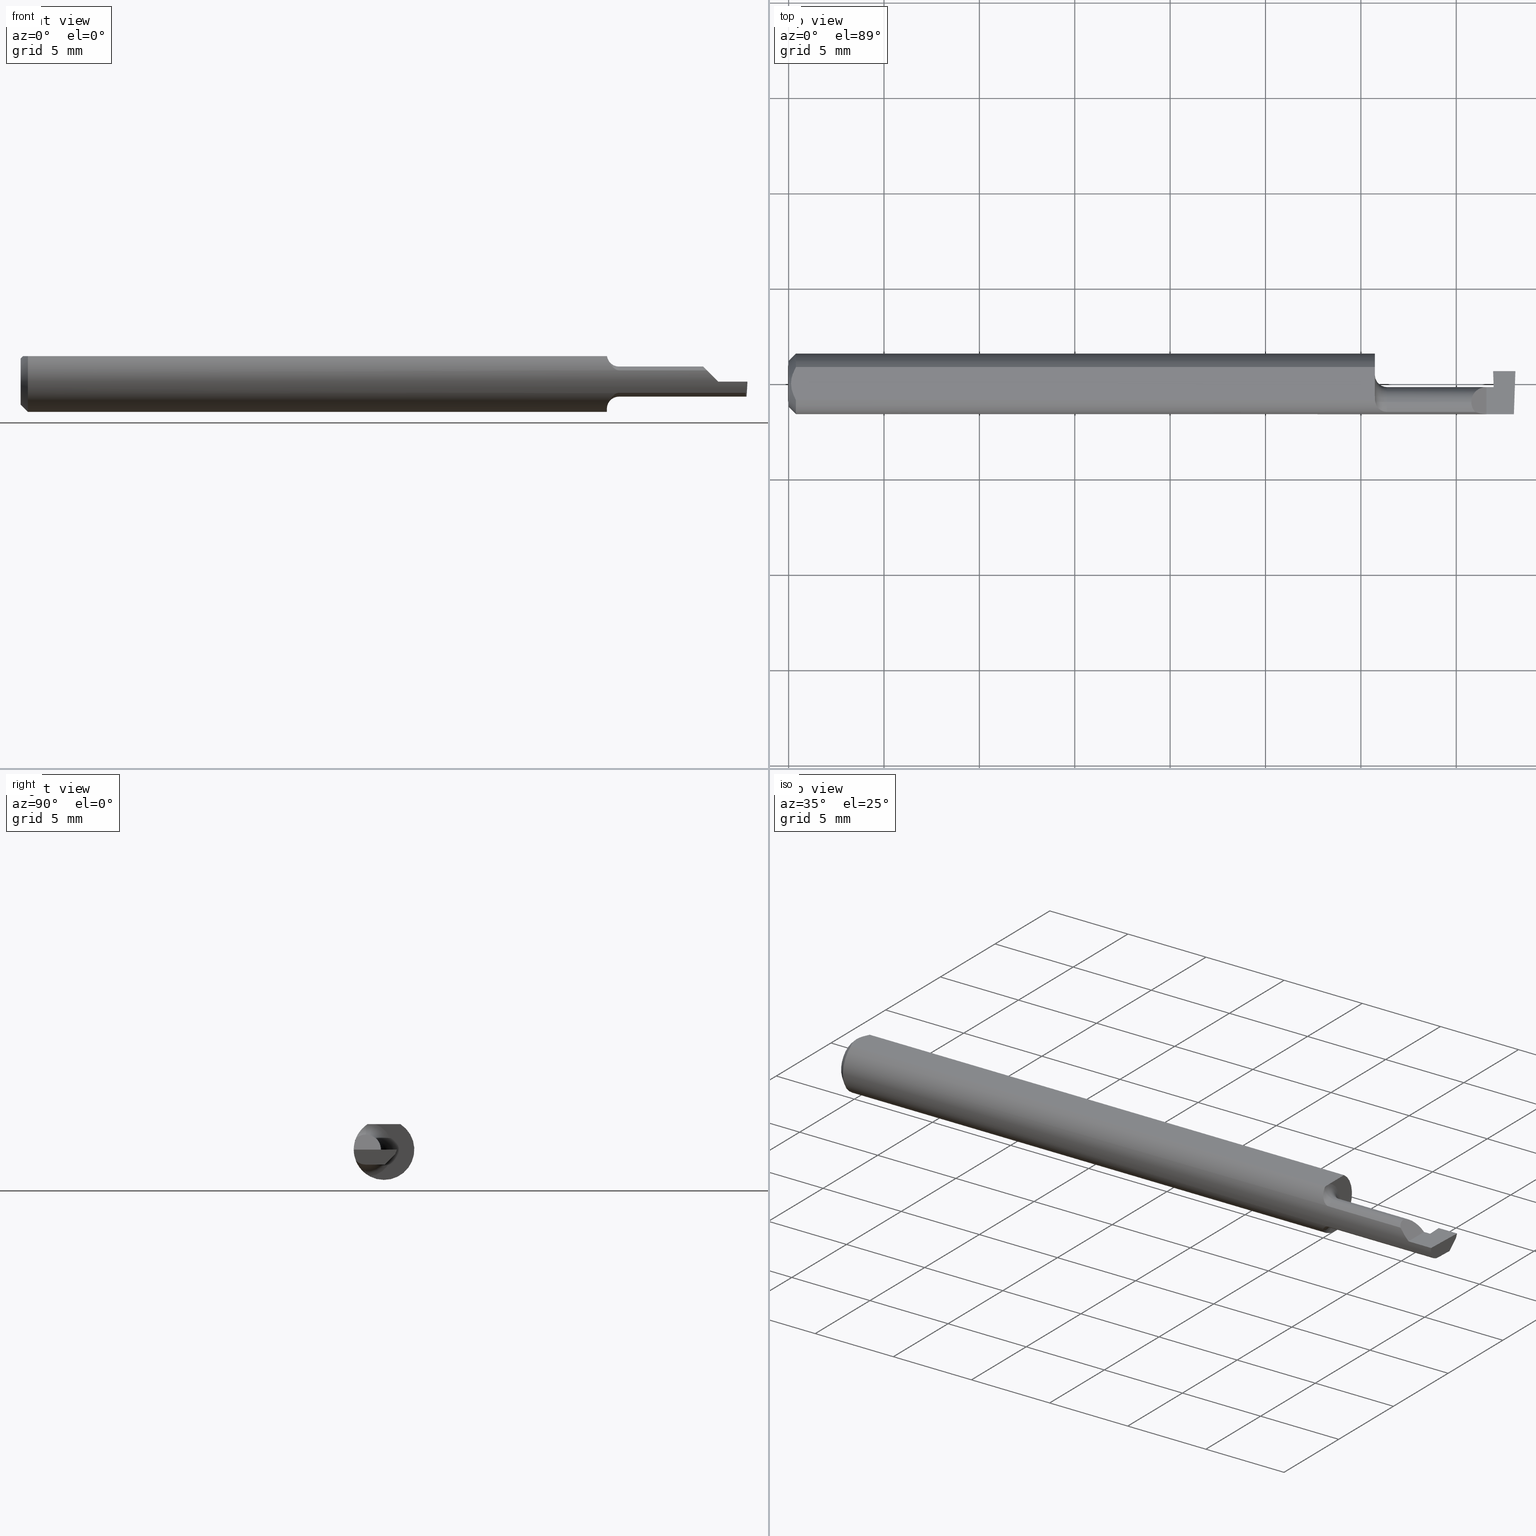
[diagram: canonical four-view strip — front | top / right | iso, engineering-drawing reading convention]
A machine part, canonical four-view strip (front | top / right | iso — engineering-drawing reading convention). The complete STEP part file that produces these views, byte-faithful:
ISO-10303-21;
HEADER;
FILE_DESCRIPTION (( 'STEP AP203' ),
    '1' );
FILE_NAME ('220560-GT045-4.STEP',
    '2024-07-15T18:47:25',
    ( '' ),
    ( '' ),
    'SwSTEP 2.0',
    'SolidWorks 2024',
    '' );
FILE_SCHEMA (( 'CONFIG_CONTROL_DESIGN' ));
ENDSEC;

DATA;
#1 = ORIENTED_EDGE ( 'NONE', *, *, #678, .T. ) ;
#2 = CARTESIAN_POINT ( 'NONE',  ( 0.000000000000000000, 6.735557395310443132E-18, 0.04749999999999999362 ) ) ;
#3 = VERTEX_POINT ( 'NONE', #244 ) ;
#4 = LENGTH_MEASURE_WITH_UNIT ( LENGTH_MEASURE( 0.02539999999999999897 ), #463 );
#5 = LINE ( 'NONE', #165, #80 ) ;
#6 = VECTOR ( 'NONE', #457, 39.37007874015748143 ) ;
#7 = ORIENTED_EDGE ( 'NONE', *, *, #114, .F. ) ;
#8 = CARTESIAN_POINT ( 'NONE',  ( 0.004999999999998634009, -0.005964525438754507587, 0.05250000000000000500 ) ) ;
#9 = CARTESIAN_POINT ( 'NONE',  ( 1.496890555848597870, -0.06249997390100388295, -5.711719386470728930E-05 ) ) ;
#10 = ORIENTED_EDGE ( 'NONE', *, *, #421, .F. ) ;
#11 = CARTESIAN_POINT ( 'NONE',  ( 1.454000000000000181, 0.02649999999999999231, -4.390358774943263236E-18 ) ) ;
#12 = EDGE_CURVE ( 'NONE', #689, #163, #477, .T. ) ;
#13 = LINE ( 'NONE', #667, #136 ) ;
#14 = EDGE_LOOP ( 'NONE', ( #438, #233, #417, #288, #121, #435 ) ) ;
#15 = DIRECTION ( 'NONE',  ( 0.000000000000000000, 0.000000000000000000, 1.000000000000000000 ) ) ;
#16 = DIRECTION ( 'NONE',  ( 0.000000000000000000, 0.000000000000000000, 1.000000000000000000 ) ) ;
#17 = ORIENTED_EDGE ( 'NONE', *, *, #362, .T. ) ;
#18 = VECTOR ( 'NONE', #317, 39.37007874015748854 ) ;
#19 = VECTOR ( 'NONE', #295, 39.37007874015748143 ) ;
#20 = CARTESIAN_POINT ( 'NONE',  ( 0.004999999999989314207, 8.235553591830799656E-16, 0.05250000000000000500 ) ) ;
#21 = CARTESIAN_POINT ( 'NONE',  ( 0.01499999999999999944, 0.000000000000000000, -0.06250000000000000000 ) ) ;
#22 = CALENDAR_DATE ( 2024, 15, 7 ) ;
#23 = CARTESIAN_POINT ( 'NONE',  ( 0.004999999999999040802, 0.005952453510029875015, 0.05249999999999999806 ) ) ;
#24 = FACE_OUTER_BOUND ( 'NONE', #567, .T. ) ;
#25 = DATE_AND_TIME ( #523, #563 ) ;
#26 = PLANE ( 'NONE',  #687 ) ;
#27 = DIRECTION ( 'NONE',  ( 0.000000000000000000, -0.9396926207859080948, 0.3420201433256694901 ) ) ;
#28 = EDGE_CURVE ( 'NONE', #543, #558, #253, .T. ) ;
#29 = PERSON_AND_ORGANIZATION_ROLE ( 'classification_officer' ) ;
#30 = AXIS2_PLACEMENT_3D ( 'NONE', #630, #142, #243 ) ;
#31 = DIRECTION ( 'NONE',  ( 0.9987827668610292919, 0.03485699000042362383, 0.03489949669461413218 ) ) ;
#32 = ORIENTED_EDGE ( 'NONE', *, *, #575, .F. ) ;
#33 = B_SPLINE_CURVE_WITH_KNOTS ( 'NONE', 3,
 ( #606, #706, #646, #153, #155, #98, #159, #382 ),
 .UNSPECIFIED., .F., .F.,
 ( 4, 2, 2, 4 ),
 ( 1.966728711740052493E-07, 0.0002849675137165564470, 0.0005697383545619388086, 0.001139280036252703424 ),
 .UNSPECIFIED. ) ;
#34 = CARTESIAN_POINT ( 'NONE',  ( 1.210730677800976984, -0.03749999999999999167, -0.05000000000000000278 ) ) ;
#35 = DATE_TIME_ROLE ( 'creation_date' ) ;
#36 = EDGE_CURVE ( 'NONE', #390, #470, #84, .T. ) ;
#37 = ADVANCED_FACE ( 'NONE', ( #238 ), #299, .T. ) ;
#38 = CARTESIAN_POINT ( 'NONE',  ( 1.210000000000000187, 0.09349999999999999978, 0.000000000000000000 ) ) ;
#39 = CARTESIAN_POINT ( 'NONE',  ( 1.500000000000000222, -0.06250000000000001388, 0.05250000000000000500 ) ) ;
#40 = ORIENTED_EDGE ( 'NONE', *, *, #199, .T. ) ;
#41 = CIRCLE ( 'NONE', #338, 0.06250000000000000000 ) ;
#42 = AXIS2_PLACEMENT_3D ( 'NONE', #585, #635, #426 ) ;
#43 = DIRECTION ( 'NONE',  ( -1.000000000000000000, -0.000000000000000000, -0.000000000000000000 ) ) ;
#44 = ORIENTED_EDGE ( 'NONE', *, *, #419, .F. ) ;
#45 =( BOUNDED_CURVE ( )  B_SPLINE_CURVE ( 3, ( #663, #608, #110, #328 ),
 .UNSPECIFIED., .F., .F. ) 
 B_SPLINE_CURVE_WITH_KNOTS ( ( 4, 4 ),
 ( 0.2627802246738042968, 0.6427944074216366266 ),
 .UNSPECIFIED. ) 
 CURVE ( )  GEOMETRIC_REPRESENTATION_ITEM ( )  RATIONAL_B_SPLINE_CURVE ( ( 1.000000000000000000, 0.9880019305490248538, 0.9880019305490248538, 1.000000000000000000 ) ) 
 REPRESENTATION_ITEM ( '' )  );
#46 = CARTESIAN_POINT ( 'NONE',  ( 1.210000000000000187, -0.03749999999999999167, 0.000000000000000000 ) ) ;
#47 = CARTESIAN_POINT ( 'NONE',  ( 1.455785434802166822, -0.006499999999999978885, -0.01815937956643404530 ) ) ;
#48 = ORIENTED_EDGE ( 'NONE', *, *, #713, .F. ) ;
#49 = FACE_OUTER_BOUND ( 'NONE', #56, .T. ) ;
#50 = FACE_OUTER_BOUND ( 'NONE', #14, .T. ) ;
#51 = ORIENTED_EDGE ( 'NONE', *, *, #280, .F. ) ;
#52 = ADVANCED_BREP_SHAPE_REPRESENTATION ( '220560-GT045-4', ( #458, #42 ), #55 ) ;
#53 = ADVANCED_FACE ( 'NONE', ( #24 ), #140, .F. ) ;
#54 = CARTESIAN_POINT ( 'NONE',  ( 1.499866476241620061, 0.02525106216603811501, -0.003431428497112825552 ) ) ;
#55 =( GEOMETRIC_REPRESENTATION_CONTEXT ( 3 ) GLOBAL_UNCERTAINTY_ASSIGNED_CONTEXT ( ( #478 ) ) GLOBAL_UNIT_ASSIGNED_CONTEXT ( ( #181, #404, #418 ) ) REPRESENTATION_CONTEXT ( 'NONE', 'WORKASPACE' ) );
#56 = EDGE_LOOP ( 'NONE', ( #501, #536, #44, #619, #273, #113 ) ) ;
#57 = CARTESIAN_POINT ( 'NONE',  ( 1.496952812378028463, -0.03749999999999999167, -0.03099999999999999631 ) ) ;
#58 = CARTESIAN_POINT ( 'NONE',  ( 1.211276458122897637, -0.04044349299612768484, 0.04779238025290422770 ) ) ;
#59 = ORIENTED_EDGE ( 'NONE', *, *, #409, .F. ) ;
#60 = EDGE_CURVE ( 'NONE', #163, #62, #149, .T. ) ;
#61 = DIRECTION ( 'NONE',  ( -1.000000000000000000, -0.000000000000000000, -0.000000000000000000 ) ) ;
#62 = VERTEX_POINT ( 'NONE', #531 ) ;
#63 = CARTESIAN_POINT ( 'NONE',  ( 1.210204566557054884, -0.03126200802673112511, 0.05250000000000000500 ) ) ;
#64 = CARTESIAN_POINT ( 'NONE',  ( 1.411704532561413483, -0.05229120942765425745, 0.02829546743858684862 ) ) ;
#65 = AXIS2_PLACEMENT_3D ( 'NONE', #596, #43, #268 ) ;
#66 = ORIENTED_EDGE ( 'NONE', *, *, #166, .F. ) ;
#67 = AXIS2_PLACEMENT_3D ( 'NONE', #659, #493, #115 ) ;
#68 = EDGE_CURVE ( 'NONE', #204, #329, #533, .T. ) ;
#69 = CARTESIAN_POINT ( 'NONE',  ( 1.440000000000000169, -0.06250000000000000000, 7.469896857675718968E-18 ) ) ;
#70 = CARTESIAN_POINT ( 'NONE',  ( 1.214533395136242033, -0.04798856493085172648, 0.04019628732337204163 ) ) ;
#71 = VERTEX_POINT ( 'NONE', #34 ) ;
#72 = CARTESIAN_POINT ( 'NONE',  ( 0.000000000000000000, 0.000000000000000000, 0.000000000000000000 ) ) ;
#73 = LINE ( 'NONE', #123, #710 ) ;
#74 = VERTEX_POINT ( 'NONE', #249 ) ;
#75 = EDGE_CURVE ( 'NONE', #470, #163, #326, .T. ) ;
#76 = CARTESIAN_POINT ( 'NONE',  ( 1.500000000000000222, -0.03749999999999999861, -0.03099999999999999631 ) ) ;
#77 = EDGE_CURVE ( 'NONE', #394, #102, #551, .T. ) ;
#78 = PLANE ( 'NONE',  #644 ) ;
#79 = CARTESIAN_POINT ( 'NONE',  ( 1.209999999999999964, -0.03749999999999999167, 0.000000000000000000 ) ) ;
#80 = VECTOR ( 'NONE', #612, 39.37007874015748143 ) ;
#81 = LOCAL_TIME ( 11, 47, 25.00000000000000000, #294 ) ;
#82 = VECTOR ( 'NONE', #323, 39.37007874015748854 ) ;
#83 = CARTESIAN_POINT ( 'NONE',  ( 1.500000000000000222, 0.001860297657337893224, -0.03100000000000000325 ) ) ;
#84 = LINE ( 'NONE', #292, #485 ) ;
#85 = PERSON_AND_ORGANIZATION_ROLE ( 'design_owner' ) ;
#86 = DIRECTION ( 'NONE',  ( 0.000000000000000000, 0.000000000000000000, -1.000000000000000000 ) ) ;
#87 = VERTEX_POINT ( 'NONE', #484 ) ;
#88 = PERSON_AND_ORGANIZATION ( #544, #416 ) ;
#89 = DIRECTION ( 'NONE',  ( -0.000000000000000000, 1.000000000000000000, 0.000000000000000000 ) ) ;
#90 = B_SPLINE_CURVE_WITH_KNOTS ( 'NONE', 3,
 ( #625, #8, #572, #564, #337, #468 ),
 .UNSPECIFIED., .F., .F.,
 ( 4, 2, 4 ),
 ( 0.001877944590463637717, 0.002327931134338583757, 0.002777917678213529581 ),
 .UNSPECIFIED. ) ;
#91 = DIRECTION ( 'NONE',  ( 0.000000000000000000, -0.3420201433256694901, -0.9396926207859080948 ) ) ;
#92 = CARTESIAN_POINT ( 'NONE',  ( 1.416763614738949295, -0.05802000000000001600, 0.02323638526105122060 ) ) ;
#93 = CARTESIAN_POINT ( 'NONE',  ( 0.01499999999999999944, 0.000000000000000000, 0.000000000000000000 ) ) ;
#94 = EDGE_CURVE ( 'NONE', #702, #3, #370, .T. ) ;
#95 = APPLICATION_PROTOCOL_DEFINITION ( 'international standard', 'config_control_design', 1994, #368 ) ;
#96 = LINE ( 'NONE', #645, #600 ) ;
#97 = EDGE_CURVE ( 'NONE', #504, #547, #203, .T. ) ;
#98 = CARTESIAN_POINT ( 'NONE',  ( 1.214146460857340459, -0.04830100695595842403, -0.04017699635729578972 ) ) ;
#99 = ORIENTED_EDGE ( 'NONE', *, *, #160, .T. ) ;
#100 = CIRCLE ( 'NONE', #67, 0.02500000000000000139 ) ;
#101 = CARTESIAN_POINT ( 'NONE',  ( 1.409000000000000252, -0.03749999999999999167, 0.03099999999999999978 ) ) ;
#102 = VERTEX_POINT ( 'NONE', #599 ) ;
#103 = CARTESIAN_POINT ( 'NONE',  ( 1.455151682536162783, -0.006500000000000021386, 1.132879419432717802E-17 ) ) ;
#104 = EDGE_CURVE ( 'NONE', #62, #462, #96, .T. ) ;
#105 = EDGE_LOOP ( 'NONE', ( #467, #176, #269 ) ) ;
#106 = ADVANCED_FACE ( 'NONE', ( #595 ), #354, .F. ) ;
#107 = CARTESIAN_POINT ( 'NONE',  ( 1.235000000000000098, -0.03749999999999999167, 0.000000000000000000 ) ) ;
#108 = CARTESIAN_POINT ( 'NONE',  ( 1.496439659513480569, -0.05802000000000000213, -0.02323638526105124835 ) ) ;
#109 = CARTESIAN_POINT ( 'NONE',  ( 0.01499999999999999944, 0.000000000000000000, -0.06250000000000000000 ) ) ;
#110 = CARTESIAN_POINT ( 'NONE',  ( 1.496682112777580453, -0.06249269490856873555, -0.008022088972760511166 ) ) ;
#111 = AXIS2_PLACEMENT_3D ( 'NONE', #359, #27, #91 ) ;
#112 = VECTOR ( 'NONE', #502, 39.37007874015748143 ) ;
#113 = ORIENTED_EDGE ( 'NONE', *, *, #207, .T. ) ;
#114 = EDGE_CURVE ( 'NONE', #173, #87, #449, .T. ) ;
#115 = DIRECTION ( 'NONE',  ( 0.000000000000000000, 0.000000000000000000, -1.000000000000000000 ) ) ;
#116 = DIRECTION ( 'NONE',  ( -1.000000000000000000, -0.000000000000000000, -0.000000000000000000 ) ) ;
#117 = ORIENTED_EDGE ( 'NONE', *, *, #75, .F. ) ;
#118 = CARTESIAN_POINT ( 'NONE',  ( 1.440000000000000169, -0.1000000000000000056, 7.469896857675718968E-18 ) ) ;
#119 = DIRECTION ( 'NONE',  ( 0.02616100201822768243, -0.0009135623211514329539, 0.9996573249755575929 ) ) ;
#120 = PRODUCT_DEFINITION ( 'UNKNOWN', '', #170, #247 ) ;
#121 = ORIENTED_EDGE ( 'NONE', *, *, #407, .T. ) ;
#122 = DIRECTION ( 'NONE',  ( -0.03489949670249706953, -0.9993908270190959842, 0.000000000000000000 ) ) ;
#123 = CARTESIAN_POINT ( 'NONE',  ( 1.495584001414323128, -0.06245432188394240552, -0.04998286624877785328 ) ) ;
#124 = CIRCLE ( 'NONE', #126, 0.03099999999999999978 ) ;
#125 = ORIENTED_EDGE ( 'NONE', *, *, #427, .F. ) ;
#126 = AXIS2_PLACEMENT_3D ( 'NONE', #406, #677, #16 ) ;
#127 = DIRECTION ( 'NONE',  ( -0.000000000000000000, 1.000000000000000000, -0.000000000000000000 ) ) ;
#128 = CARTESIAN_POINT ( 'NONE',  ( 1.210730677800976984, -0.03749999999999999861, 0.05000000000000000278 ) ) ;
#129 = ADVANCED_FACE ( 'NONE', ( #535 ), #701, .T. ) ;
#130 = ORIENTED_EDGE ( 'NONE', *, *, #152, .F. ) ;
#131 = ADVANCED_FACE ( 'NONE', ( #50 ), #261, .T. ) ;
#132 = FACE_OUTER_BOUND ( 'NONE', #561, .T. ) ;
#133 = ORIENTED_EDGE ( 'NONE', *, *, #289, .T. ) ;
#134 = FACE_OUTER_BOUND ( 'NONE', #216, .T. ) ;
#135 = EDGE_LOOP ( 'NONE', ( #704, #1, #125, #40 ) ) ;
#136 = VECTOR ( 'NONE', #175, 39.37007874015748143 ) ;
#137 = VECTOR ( 'NONE', #579, 39.37007874015749564 ) ;
#138 = PERSON_AND_ORGANIZATION ( #544, #416 ) ;
#139 = CARTESIAN_POINT ( 'NONE',  ( 1.210000000000000187, -0.06250000000000001388, 0.05250000000000000500 ) ) ;
#140 = PLANE ( 'NONE',  #111 ) ;
#141 = APPROVAL_ROLE ( '' ) ;
#142 = DIRECTION ( 'NONE',  ( 0.000000000000000000, -0.7071067811865462405, 0.7071067811865487940 ) ) ;
#143 = ORIENTED_EDGE ( 'NONE', *, *, #594, .T. ) ;
#144 = EDGE_CURVE ( 'NONE', #547, #71, #33, .T. ) ;
#145 = DIRECTION ( 'NONE',  ( 0.03487823687994284771, -0.9993915692020551855, -4.336991745945064567E-18 ) ) ;
#146 = ORIENTED_EDGE ( 'NONE', *, *, #372, .F. ) ;
#147 =( BOUNDED_CURVE ( )  B_SPLINE_CURVE ( 3, ( #541, #545, #446, #57 ),
 .UNSPECIFIED., .F., .F. ) 
 B_SPLINE_CURVE_WITH_KNOTS ( ( 4, 4 ),
 ( 0.2036900605468121850, 0.9270880441442186370 ),
 .UNSPECIFIED. ) 
 CURVE ( )  GEOMETRIC_REPRESENTATION_ITEM ( )  RATIONAL_B_SPLINE_CURVE ( ( 1.000000000000000000, 0.9568646414437727010, 0.9568646414437727010, 1.000000000000000000 ) ) 
 REPRESENTATION_ITEM ( '' )  );
#148 = DATE_AND_TIME ( #187, #552 ) ;
#149 = CIRCLE ( 'NONE', #590, 0.06250000000000000000 ) ;
#150 = CC_DESIGN_APPROVAL ( #584, ( #170 ) ) ;
#151 = CARTESIAN_POINT ( 'NONE',  ( 1.235000000000000098, -0.03749999999999999167, 0.000000000000000000 ) ) ;
#152 = EDGE_CURVE ( 'NONE', #515, #668, #312, .T. ) ;
#153 = CARTESIAN_POINT ( 'NONE',  ( 1.222133919495981269, -0.05512334192814493522, -0.02956107256455840077 ) ) ;
#154 = ORIENTED_EDGE ( 'NONE', *, *, #152, .T. ) ;
#155 = CARTESIAN_POINT ( 'NONE',  ( 1.219857446812235624, -0.05365459147834109738, -0.03221283735729432718 ) ) ;
#156 = ORIENTED_EDGE ( 'NONE', *, *, #520, .F. ) ;
#157 = VECTOR ( 'NONE', #116, 39.37007874015748143 ) ;
#158 = SECURITY_CLASSIFICATION ( '', '', #643 ) ;
#159 = CARTESIAN_POINT ( 'NONE',  ( 1.211822973508685619, -0.04339095032599648433, -0.04558178725550265931 ) ) ;
#160 = EDGE_CURVE ( 'NONE', #657, #425, #597, .T. ) ;
#161 = ORIENTED_EDGE ( 'NONE', *, *, #94, .T. ) ;
#162 = DIRECTION ( 'NONE',  ( 0.000000000000000000, 0.000000000000000000, 1.000000000000000000 ) ) ;
#163 = VERTEX_POINT ( 'NONE', #109 ) ;
#164 = PRODUCT ( '220560-GT045-4', '220560-GT045-4', '', ( #201 ) ) ;
#165 = CARTESIAN_POINT ( 'NONE',  ( 1.210000000000000187, -0.03749999999999999167, 0.03099999999999999978 ) ) ;
#166 = EDGE_CURVE ( 'NONE', #558, #390, #41, .T. ) ;
#167 = ORIENTED_EDGE ( 'NONE', *, *, #372, .T. ) ;
#168 =( BOUNDED_CURVE ( )  B_SPLINE_CURVE ( 3, ( #215, #64, #453, #395 ),
 .UNSPECIFIED., .F., .F. ) 
 B_SPLINE_CURVE_WITH_KNOTS ( ( 4, 4 ),
 ( 5.559787323582177976, 6.283185307179586232 ),
 .UNSPECIFIED. ) 
 CURVE ( )  GEOMETRIC_REPRESENTATION_ITEM ( )  RATIONAL_B_SPLINE_CURVE ( ( 1.000000000000000000, 0.9568646414437724790, 0.9568646414437724790, 1.000000000000000000 ) ) 
 REPRESENTATION_ITEM ( '' )  );
#169 = LINE ( 'NONE', #655, #391 ) ;
#170 = PRODUCT_DEFINITION_FORMATION_WITH_SPECIFIED_SOURCE ( 'ANY', '', #164, .NOT_KNOWN. ) ;
#171 = EDGE_LOOP ( 'NONE', ( #507, #276, #634, #167, #340, #624 ) ) ;
#172 = CARTESIAN_POINT ( 'NONE',  ( 1.209999999999999964, -0.02066217183507433608, 0.05250000000000000500 ) ) ;
#173 = VERTEX_POINT ( 'NONE', #101 ) ;
#174 = DIRECTION ( 'NONE',  ( 0.000000000000000000, -1.707404996040164512E-16, 1.000000000000000000 ) ) ;
#175 = DIRECTION ( 'NONE',  ( 1.000000000000000000, -0.000000000000000000, -0.000000000000000000 ) ) ;
#176 = ORIENTED_EDGE ( 'NONE', *, *, #464, .F. ) ;
#177 = DIRECTION ( 'NONE',  ( -0.7071067811865489050, 0.000000000000000000, -0.7071067811865461294 ) ) ;
#178 = CARTESIAN_POINT ( 'NONE',  ( 1.210516057201464379, -0.03634251189330765103, 0.05086811608001926693 ) ) ;
#179 = ORIENTED_EDGE ( 'NONE', *, *, #628, .F. ) ;
#180 = EDGE_CURVE ( 'NONE', #652, #186, #324, .T. ) ;
#181 =( CONVERSION_BASED_UNIT ( 'INCH', #4 ) LENGTH_UNIT ( ) NAMED_UNIT ( #266 ) );
#182 = PLANE ( 'NONE',  #415 ) ;
#183 = ORIENTED_EDGE ( 'NONE', *, *, #715, .T. ) ;
#184 = CARTESIAN_POINT ( 'NONE',  ( 1.209999999999999964, -0.01801282473009493609, 0.05250000000000000500 ) ) ;
#185 = LINE ( 'NONE', #589, #137 ) ;
#186 = VERTEX_POINT ( 'NONE', #321 ) ;
#187 = CALENDAR_DATE ( 2024, 15, 7 ) ;
#188 = CARTESIAN_POINT ( 'NONE',  ( 0.01499999999999999944, 0.000000000000000000, 0.000000000000000000 ) ) ;
#189 = ORIENTED_EDGE ( 'NONE', *, *, #319, .F. ) ;
#190 = VECTOR ( 'NONE', #692, 39.37007874015748143 ) ;
#191 = CALENDAR_DATE ( 2024, 15, 7 ) ;
#192 = LINE ( 'NONE', #586, #19 ) ;
#193 = DIRECTION ( 'NONE',  ( 0.000000000000000000, 0.000000000000000000, 1.000000000000000000 ) ) ;
#194 = APPROVAL_DATE_TIME ( #481, #705 ) ;
#195 = CARTESIAN_POINT ( 'NONE',  ( 1.235000000000000098, -0.05802000000000001600, 0.02323638526105123100 ) ) ;
#196 = DIRECTION ( 'NONE',  ( 0.000000000000000000, 0.000000000000000000, 1.000000000000000000 ) ) ;
#197 = SHAPE_DEFINITION_REPRESENTATION ( #605, #52 ) ;
#198 = FACE_OUTER_BOUND ( 'NONE', #171, .T. ) ;
#199 = EDGE_CURVE ( 'NONE', #231, #515, #546, .T. ) ;
#200 = DIRECTION ( 'NONE',  ( -1.000000000000000000, -0.000000000000000000, -0.000000000000000000 ) ) ;
#201 = MECHANICAL_CONTEXT ( 'NONE', #368, 'mechanical' ) ;
#202 = CIRCLE ( 'NONE', #242, 0.02500000000000000139 ) ;
#203 = LINE ( 'NONE', #649, #497 ) ;
#204 = VERTEX_POINT ( 'NONE', #2 ) ;
#205 = DIRECTION ( 'NONE',  ( 0.000000000000000000, 0.000000000000000000, 1.000000000000000000 ) ) ;
#206 = EDGE_LOOP ( 'NONE', ( #310, #613, #17 ) ) ;
#207 = EDGE_CURVE ( 'NONE', #87, #3, #169, .T. ) ;
#208 = CARTESIAN_POINT ( 'NONE',  ( 1.500000000000000222, 0.05427015754537661829, -0.03100000000000001019 ) ) ;
#209 = DIRECTION ( 'NONE',  ( -0.04472628571147419657, 0.3416778765727996880, 0.9387522506109683418 ) ) ;
#210 = AXIS2_PLACEMENT_3D ( 'NONE', #363, #236, #522 ) ;
#211 = AXIS2_PLACEMENT_3D ( 'NONE', #240, #465, #86 ) ;
#212 = DIRECTION ( 'NONE',  ( -1.000000000000000000, -0.000000000000000000, -0.000000000000000000 ) ) ;
#213 = ORIENTED_EDGE ( 'NONE', *, *, #77, .F. ) ;
#214 = CARTESIAN_POINT ( 'NONE',  ( 1.210730677800976984, -0.03749999999999999167, -0.05000000000000000278 ) ) ;
#215 = CARTESIAN_POINT ( 'NONE',  ( 1.416763614738949295, -0.05802000000000001600, 0.02323638526105122060 ) ) ;
#216 = EDGE_LOOP ( 'NONE', ( #647, #59, #459, #592, #454 ) ) ;
#217 = CARTESIAN_POINT ( 'NONE',  ( 1.209999999999999964, -0.02902000000000000066, -0.05535421935137375266 ) ) ;
#218 = CARTESIAN_POINT ( 'NONE',  ( 1.455943115480260230, 0.001860297657337897561, -0.03099999999999999631 ) ) ;
#219 = ORIENTED_EDGE ( 'NONE', *, *, #439, .F. ) ;
#220 = VECTOR ( 'NONE', #225, 39.37007874015748143 ) ;
#221 = DIRECTION ( 'NONE',  ( 0.000000000000000000, 0.000000000000000000, 1.000000000000000000 ) ) ;
#222 = VECTOR ( 'NONE', #89, 39.37007874015748143 ) ;
#223 = ORIENTED_EDGE ( 'NONE', *, *, #715, .F. ) ;
#224 = DIRECTION ( 'NONE',  ( 1.000000000000000000, -0.000000000000000000, -0.000000000000000000 ) ) ;
#225 = DIRECTION ( 'NONE',  ( 1.000000000000000000, 0.000000000000000000, 0.000000000000000000 ) ) ;
#226 = ORIENTED_EDGE ( 'NONE', *, *, #60, .F. ) ;
#227 = EDGE_CURVE ( 'NONE', #540, #657, #503, .T. ) ;
#228 = DIRECTION ( 'NONE',  ( -0.000000000000000000, 1.860523117437084140E-16, 1.000000000000000000 ) ) ;
#229 = ADVANCED_FACE ( 'NONE', ( #402 ), #230, .T. ) ;
#230 = CYLINDRICAL_SURFACE ( 'NONE', #562, 0.06250000000000000000 ) ;
#231 = VERTEX_POINT ( 'NONE', #218 ) ;
#232 = DIRECTION ( 'NONE',  ( 1.000000000000000000, 0.000000000000000000, 0.000000000000000000 ) ) ;
#233 = ORIENTED_EDGE ( 'NONE', *, *, #658, .T. ) ;
#234 = DIRECTION ( 'NONE',  ( -0.000000000000000000, 1.000000000000000000, 1.224646799147353207E-16 ) ) ;
#235 = CARTESIAN_POINT ( 'NONE',  ( 0.000000000000000000, 0.000000000000000000, 0.000000000000000000 ) ) ;
#236 = DIRECTION ( 'NONE',  ( -1.000000000000000000, -0.000000000000000000, -0.000000000000000000 ) ) ;
#237 = DIRECTION ( 'NONE',  ( 0.000000000000000000, 0.000000000000000000, -1.000000000000000000 ) ) ;
#238 = FACE_OUTER_BOUND ( 'NONE', #366, .T. ) ;
#239 = EDGE_CURVE ( 'NONE', #173, #102, #5, .T. ) ;
#240 = CARTESIAN_POINT ( 'NONE',  ( 0.01499999999999999944, 0.000000000000000000, 0.000000000000000000 ) ) ;
#241 = ORIENTED_EDGE ( 'NONE', *, *, #160, .F. ) ;
#242 = AXIS2_PLACEMENT_3D ( 'NONE', #452, #234, #174 ) ;
#243 = DIRECTION ( 'NONE',  ( 0.000000000000000000, -0.7071067811865487940, -0.7071067811865462405 ) ) ;
#244 = CARTESIAN_POINT ( 'NONE',  ( 1.455151682536162783, -0.006500000000000021386, 1.132879419432717802E-17 ) ) ;
#245 = PERSON_AND_ORGANIZATION ( #544, #416 ) ;
#246 = EDGE_CURVE ( 'NONE', #504, #252, #45, .T. ) ;
#247 = DESIGN_CONTEXT ( 'detailed design', #405, 'design' ) ;
#248 = ADVANCED_FACE ( 'NONE', ( #339 ), #450, .F. ) ;
#249 = CARTESIAN_POINT ( 'NONE',  ( 1.235000000000000098, -0.03749999999999998473, -0.03099999999999999978 ) ) ;
#250 = PERSON_AND_ORGANIZATION ( #544, #416 ) ;
#251 = DIRECTION ( 'NONE',  ( 0.000000000000000000, -0.000000000000000000, 1.000000000000000000 ) ) ;
#252 = VERTEX_POINT ( 'NONE', #9 ) ;
#253 = CIRCLE ( 'NONE', #379, 0.05599999999999999423 ) ;
#254 = APPROVAL_PERSON_ORGANIZATION ( #245, #388, #581 ) ;
#255 = CARTESIAN_POINT ( 'NONE',  ( 1.454476443978508282, 0.02286029765733796001, -0.01000000000000000368 ) ) ;
#256 = EDGE_CURVE ( 'NONE', #425, #173, #168, .T. ) ;
#257 = CARTESIAN_POINT ( 'NONE',  ( 1.210000000000000187, 0.000000000000000000, 0.000000000000000000 ) ) ;
#258 = EDGE_CURVE ( 'NONE', #462, #664, #343, .T. ) ;
#259 = ORIENTED_EDGE ( 'NONE', *, *, #665, .T. ) ;
#260 = DIRECTION ( 'NONE',  ( 1.000000000000000000, 0.000000000000000000, 0.000000000000000000 ) ) ;
#261 = PLANE ( 'NONE',  #697 ) ;
#262 = DIRECTION ( 'NONE',  ( 0.000000000000000000, 0.000000000000000000, 1.000000000000000000 ) ) ;
#263 = DIRECTION ( 'NONE',  ( 0.000000000000000000, 0.000000000000000000, 1.000000000000000000 ) ) ;
#264 = VERTEX_POINT ( 'NONE', #570 ) ;
#265 = AXIS2_PLACEMENT_3D ( 'NONE', #188, #232, #237 ) ;
#266 = DIMENSIONAL_EXPONENTS ( 1.000000000000000000, 0.000000000000000000, 0.000000000000000000, 0.000000000000000000, 0.000000000000000000, 0.000000000000000000, 0.000000000000000000 ) ;
#267 = TOROIDAL_SURFACE ( 'NONE', #303, 0.05599999999999999423, 0.02500000000000000139 ) ;
#268 = DIRECTION ( 'NONE',  ( 0.000000000000000000, 0.000000000000000000, 1.000000000000000000 ) ) ;
#269 = ORIENTED_EDGE ( 'NONE', *, *, #28, .T. ) ;
#270 = LINE ( 'NONE', #327, #82 ) ;
#271 = CARTESIAN_POINT ( 'NONE',  ( 1.219858330071591723, -0.05365673730107053258, 0.03221049271007426357 ) ) ;
#272 = EDGE_CURVE ( 'NONE', #515, #186, #13, .T. ) ;
#273 = ORIENTED_EDGE ( 'NONE', *, *, #114, .T. ) ;
#274 = CARTESIAN_POINT ( 'NONE',  ( 1.500157305068630098, 0.05426466433133510237, -0.03100000000000001019 ) ) ;
#275 = DIRECTION ( 'NONE',  ( -0.04932528479609083610, 0.7062460676987122321, 0.7062460676987096786 ) ) ;
#276 = ORIENTED_EDGE ( 'NONE', *, *, #439, .T. ) ;
#277 = CARTESIAN_POINT ( 'NONE',  ( 1.499425154834944873, 0.01982173306097602394, -0.01303856459636193107 ) ) ;
#278 = DIRECTION ( 'NONE',  ( 0.000000000000000000, 0.000000000000000000, 1.000000000000000000 ) ) ;
#279 = AXIS2_PLACEMENT_3D ( 'NONE', #353, #361, #424 ) ;
#280 = EDGE_CURVE ( 'NONE', #252, #540, #73, .T. ) ;
#281 = ORIENTED_EDGE ( 'NONE', *, *, #68, .T. ) ;
#282 = EDGE_CURVE ( 'NONE', #702, #74, #560, .T. ) ;
#283 = CARTESIAN_POINT ( 'NONE',  ( 1.210229202404335291, -0.03391164991562639619, 0.05250000000000000500 ) ) ;
#284 = CARTESIAN_POINT ( 'NONE',  ( 1.216038272854087943, -0.05007310510346348054, 0.03753991800363104536 ) ) ;
#285 = ORIENTED_EDGE ( 'NONE', *, *, #12, .F. ) ;
#286 = DIRECTION ( 'NONE',  ( -0.7071067811865461294, 0.000000000000000000, 0.7071067811865489050 ) ) ;
#287 = LINE ( 'NONE', #444, #220 ) ;
#288 = ORIENTED_EDGE ( 'NONE', *, *, #36, .T. ) ;
#289 = EDGE_CURVE ( 'NONE', #394, #425, #287, .T. ) ;
#290 = CARTESIAN_POINT ( 'NONE',  ( 0.009668628632509970039, 0.02325858892916567860, 0.05250000000000001193 ) ) ;
#291 = AXIS2_PLACEMENT_3D ( 'NONE', #714, #542, #205 ) ;
#292 = CARTESIAN_POINT ( 'NONE',  ( 0.000000000000000000, 0.03391164991562636150, 0.05249999999999998418 ) ) ;
#293 = APPROVAL_PERSON_ORGANIZATION ( #471, #705, #141 ) ;
#294 = COORDINATED_UNIVERSAL_TIME_OFFSET ( 8, 0, .BEHIND. ) ;
#295 = DIRECTION ( 'NONE',  ( 0.03489949670249706953, 0.9993908270190959842, -4.341950059913416674E-18 ) ) ;
#296 = ORIENTED_EDGE ( 'NONE', *, *, #658, .F. ) ;
#297 = DATE_AND_TIME ( #191, #81 ) ;
#298 = LINE ( 'NONE', #83, #621 ) ;
#299 = CYLINDRICAL_SURFACE ( 'NONE', #210, 0.03099999999999999978 ) ;
#300 = APPLICATION_PROTOCOL_DEFINITION ( 'international standard', 'config_control_design', 1994, #405 ) ;
#301 = CARTESIAN_POINT ( 'NONE',  ( 0.01499999999999999771, 0.03391164991562633374, 0.05250000000000000500 ) ) ;
#302 = ORIENTED_EDGE ( 'NONE', *, *, #280, .T. ) ;
#303 = AXIS2_PLACEMENT_3D ( 'NONE', #107, #384, #604 ) ;
#304 = APPROVAL_DATE_TIME ( #25, #388 ) ;
#305 = CARTESIAN_POINT ( 'NONE',  ( 1.455743911843603300, 0.02656089874350437557, -0.04996954135095477145 ) ) ;
#306 = DIRECTION ( 'NONE',  ( -1.000000000000000000, -0.000000000000000000, -0.000000000000000000 ) ) ;
#307 = B_SPLINE_CURVE_WITH_KNOTS ( 'NONE', 3,
 ( #670, #58, #565, #70, #284, #271, #500, #447, #660, #195 ),
 .UNSPECIFIED., .F., .F.,
 ( 4, 2, 2, 2, 4 ),
 ( 0.0001117245180919403103, 0.0003949083380089214376, 0.0006780921579259025379, 0.0009612759778428836381, 0.001244459797759864738 ),
 .UNSPECIFIED. ) ;
#308 = APPROVAL_STATUS ( 'not_yet_approved' ) ;
#309 = CARTESIAN_POINT ( 'NONE',  ( 1.421840620433566293, -0.006499999999999986691, 0.01815937956643405224 ) ) ;
#310 = ORIENTED_EDGE ( 'NONE', *, *, #144, .T. ) ;
#311 = DIRECTION ( 'NONE',  ( -1.000000000000000000, 0.000000000000000000, 1.244982809612622067E-16 ) ) ;
#312 = LINE ( 'NONE', #537, #475 ) ;
#313 = ORIENTED_EDGE ( 'NONE', *, *, #362, .F. ) ;
#314 = AXIS2_PLACEMENT_3D ( 'NONE', #151, #212, #162 ) ;
#315 = AXIS2_PLACEMENT_3D ( 'NONE', #320, #698, #311 ) ;
#316 = CARTESIAN_POINT ( 'NONE',  ( 1.209999999999999964, -0.01801282473009493609, 0.05250000000000000500 ) ) ;
#317 = DIRECTION ( 'NONE',  ( -0.03654090288697207922, -0.3417917279781195750, -0.9390650547762576794 ) ) ;
#318 = ORIENTED_EDGE ( 'NONE', *, *, #640, .T. ) ;
#319 = EDGE_CURVE ( 'NONE', #702, #555, #509, .T. ) ;
#320 = CARTESIAN_POINT ( 'NONE',  ( 1.500000000000000222, -0.1000000000000000056, 0.000000000000000000 ) ) ;
#321 = CARTESIAN_POINT ( 'NONE',  ( 1.499610879962989252, 0.02286029765733796001, -0.01000000000000000888 ) ) ;
#322 = ORIENTED_EDGE ( 'NONE', *, *, #575, .T. ) ;
#323 = DIRECTION ( 'NONE',  ( -0.03487823687206274836, -0.001217974870087546639, 0.9993908270190957621 ) ) ;
#324 = LINE ( 'NONE', #54, #18 ) ;
#325 = EDGE_LOOP ( 'NONE', ( #682, #183 ) ) ;
#326 = CIRCLE ( 'NONE', #699, 0.06250000000000000000 ) ;
#327 = CARTESIAN_POINT ( 'NONE',  ( 1.456895595234785512, -0.006439101226637702555, -0.04996956585043643706 ) ) ;
#328 = CARTESIAN_POINT ( 'NONE',  ( 1.496890555848597870, -0.06249997390100388295, -5.711719386470728930E-05 ) ) ;
#329 = VERTEX_POINT ( 'NONE', #398 ) ;
#330 = CARTESIAN_POINT ( 'NONE',  ( 1.209999999999999964, -0.03199811029573849247, -0.05379291541113154218 ) ) ;
#331 = B_SPLINE_CURVE_WITH_KNOTS ( 'NONE', 3,
 ( #283, #63, #559, #348, #172, #184 ),
 .UNSPECIFIED., .F., .F.,
 ( 4, 2, 4 ),
 ( 0.006720649285649993657, 0.006920528095085039244, 0.007120406904520083964 ),
 .UNSPECIFIED. ) ;
#332 = CARTESIAN_POINT ( 'NONE',  ( 0.000000000000000000, 0.000000000000000000, 0.000000000000000000 ) ) ;
#333 = ORIENTED_EDGE ( 'NONE', *, *, #594, .F. ) ;
#334 = PLANE ( 'NONE',  #610 ) ;
#335 = EDGE_CURVE ( 'NONE', #664, #394, #307, .T. ) ;
#336 = ORIENTED_EDGE ( 'NONE', *, *, #665, .F. ) ;
#337 = CARTESIAN_POINT ( 'NONE',  ( 0.01216049014016022493, -0.02867836381244416935, 0.05250000000000000500 ) ) ;
#338 = AXIS2_PLACEMENT_3D ( 'NONE', #257, #433, #377 ) ;
#339 = FACE_OUTER_BOUND ( 'NONE', #712, .T. ) ;
#340 = ORIENTED_EDGE ( 'NONE', *, *, #207, .F. ) ;
#341 = CC_DESIGN_PERSON_AND_ORGANIZATION_ASSIGNMENT ( #690, #483, ( #120 ) ) ;
#342 = DIRECTION ( 'NONE',  ( -0.03489949670249706259, -0.9993908270190959842, 1.859932635832894283E-16 ) ) ;
#343 = B_SPLINE_CURVE_WITH_KNOTS ( 'NONE', 3,
 ( #615, #623, #178, #128 ),
 .UNSPECIFIED., .F., .F.,
 ( 4, 4 ),
 ( 3.663786321824667157E-07, 0.0001117245180919403103 ),
 .UNSPECIFIED. ) ;
#344 = CARTESIAN_POINT ( 'NONE',  ( 1.235000000000000098, -0.03749999999999999167, 0.000000000000000000 ) ) ;
#345 = ADVANCED_FACE ( 'NONE', ( #132 ), #182, .F. ) ;
#346 = ORIENTED_EDGE ( 'NONE', *, *, #289, .F. ) ;
#347 = ADVANCED_FACE ( 'NONE', ( #582 ), #358, .F. ) ;
#348 = CARTESIAN_POINT ( 'NONE',  ( 1.210049859856603183, -0.02331211554562635097, 0.05250000000000001193 ) ) ;
#349 = CARTESIAN_POINT ( 'NONE',  ( 1.210000000000000187, 0.03391164991562634068, 0.05250000000000000500 ) ) ;
#350 = ORIENTED_EDGE ( 'NONE', *, *, #421, .T. ) ;
#351 = PLANE ( 'NONE',  #674 ) ;
#352 = ADVANCED_FACE ( 'NONE', ( #420 ), #529, .T. ) ;
#353 = CARTESIAN_POINT ( 'NONE',  ( 0.000000000000000000, 0.000000000000000000, 0.000000000000000000 ) ) ;
#354 = TOROIDAL_SURFACE ( 'NONE', #314, 0.05599999999999999423, 0.02500000000000000139 ) ;
#355 = AXIS2_PLACEMENT_3D ( 'NONE', #72, #512, #15 ) ;
#356 = ORIENTED_EDGE ( 'NONE', *, *, #97, .F. ) ;
#357 = APPROVAL_STATUS ( 'not_yet_approved' ) ;
#358 = PLANE ( 'NONE',  #30 ) ;
#359 = CARTESIAN_POINT ( 'NONE',  ( 1.400000000000000133, 0.02649999999999999231, -4.390358774943263236E-18 ) ) ;
#360 = PERSON_AND_ORGANIZATION ( #544, #416 ) ;
#361 = DIRECTION ( 'NONE',  ( -1.000000000000000000, -0.000000000000000000, -0.000000000000000000 ) ) ;
#362 = EDGE_CURVE ( 'NONE', #74, #547, #124, .T. ) ;
#363 = CARTESIAN_POINT ( 'NONE',  ( 1.210000000000000187, -0.03749999999999999167, 0.000000000000000000 ) ) ;
#364 = ADVANCED_FACE ( 'NONE', ( #688 ), #26, .F. ) ;
#365 = DIRECTION ( 'NONE',  ( -1.000000000000000000, -0.000000000000000000, -0.000000000000000000 ) ) ;
#366 = EDGE_LOOP ( 'NONE', ( #679, #48, #156, #616, #313 ) ) ;
#367 = VECTOR ( 'NONE', #224, 39.37007874015748143 ) ;
#368 = APPLICATION_CONTEXT ( 'configuration controlled 3d designs of mechanical parts and assemblies' ) ;
#369 = COORDINATED_UNIVERSAL_TIME_OFFSET ( 8, 0, .BEHIND. ) ;
#370 =( BOUNDED_CURVE ( )  B_SPLINE_CURVE ( 3, ( #491, #549, #47, #103 ),
 .UNSPECIFIED., .F., .T. ) 
 B_SPLINE_CURVE_WITH_KNOTS ( ( 4, 4 ),
 ( 3.140373936913447572, 4.711170263708345018 ),
 .UNSPECIFIED. ) 
 CURVE ( )  GEOMETRIC_REPRESENTATION_ITEM ( )  RATIONAL_B_SPLINE_CURVE ( ( 1.000000000000000000, 0.8047378541243648264, 0.8047378541243648264, 1.000000000000000000 ) ) 
 REPRESENTATION_ITEM ( '' )  );
#371 = DIRECTION ( 'NONE',  ( -1.000000000000000000, -0.000000000000000000, -0.000000000000000000 ) ) ;
#372 = EDGE_CURVE ( 'NONE', #668, #3, #626, .T. ) ;
#373 = B_SPLINE_CURVE_WITH_KNOTS ( 'NONE', 3,
 ( #691, #472, #290, #681, #23, #20 ),
 .UNSPECIFIED., .F., .F.,
 ( 4, 2, 4 ),
 ( 0.0009797930073890425730, 0.001428868798926340253, 0.001877944590463637717 ),
 .UNSPECIFIED. ) ;
#374 = DIRECTION ( 'NONE',  ( 1.000000000000000000, 0.000000000000000000, -0.000000000000000000 ) ) ;
#375 = ORIENTED_EDGE ( 'NONE', *, *, #180, .F. ) ;
#376 = PLANE ( 'NONE',  #315 ) ;
#377 = DIRECTION ( 'NONE',  ( 0.000000000000000000, 0.000000000000000000, -1.000000000000000000 ) ) ;
#378 = ORIENTED_EDGE ( 'NONE', *, *, #427, .T. ) ;
#379 = AXIS2_PLACEMENT_3D ( 'NONE', #79, #200, #193 ) ;
#380 = VECTOR ( 'NONE', #145, 39.37007874015749564 ) ;
#381 = DIRECTION ( 'NONE',  ( -1.000000000000000000, -0.000000000000000000, -0.000000000000000000 ) ) ;
#382 = CARTESIAN_POINT ( 'NONE',  ( 1.210730677800976984, -0.03749999999999999167, -0.05000000000000000278 ) ) ;
#383 = EDGE_LOOP ( 'NONE', ( #490, #241, #448, #7 ) ) ;
#384 = DIRECTION ( 'NONE',  ( -1.000000000000000000, -0.000000000000000000, -0.000000000000000000 ) ) ;
#385 = FACE_OUTER_BOUND ( 'NONE', #105, .T. ) ;
#386 = ADVANCED_FACE ( 'NONE', ( #134 ), #392, .T. ) ;
#387 = ORIENTED_EDGE ( 'NONE', *, *, #239, .T. ) ;
#388 = APPROVAL ( #357, 'UNSPECIFIED' ) ;
#389 = DIRECTION ( 'NONE',  ( -1.000000000000000000, -0.000000000000000000, -0.000000000000000000 ) ) ;
#390 = VERTEX_POINT ( 'NONE', #349 ) ;
#391 = VECTOR ( 'NONE', #618, 39.37007874015748143 ) ;
#392 = CONICAL_SURFACE ( 'NONE', #211, 0.06250000000000000000, 0.7853981633974483900 ) ;
#393 = CARTESIAN_POINT ( 'NONE',  ( 2.324973294346407873E-32, -0.06250000000000000000, 1.867474214418933224E-16 ) ) ;
#394 = VERTEX_POINT ( 'NONE', #479 ) ;
#395 = CARTESIAN_POINT ( 'NONE',  ( 1.409000000000000252, -0.03749999999999999167, 0.03099999999999999978 ) ) ;
#396 = ORIENTED_EDGE ( 'NONE', *, *, #199, .F. ) ;
#397 = CARTESIAN_POINT ( 'NONE',  ( 1.400000000000000133, 0.02649999999999999231, -4.390358774943263236E-18 ) ) ;
#398 = CARTESIAN_POINT ( 'NONE',  ( 0.004999999999989314207, 8.235553591830799656E-16, 0.05250000000000000500 ) ) ;
#399 = ADVANCED_FACE ( 'NONE', ( #573 ), #78, .F. ) ;
#400 = EDGE_LOOP ( 'NONE', ( #583, #336, #685, #375, #219, #51, #525 ) ) ;
#401 = DIRECTION ( 'NONE',  ( 0.000000000000000000, -1.000000000000000000, 1.860523117437084140E-16 ) ) ;
#402 = FACE_OUTER_BOUND ( 'NONE', #574, .T. ) ;
#403 = ORIENTED_EDGE ( 'NONE', *, *, #144, .F. ) ;
#404 =( NAMED_UNIT ( * ) PLANE_ANGLE_UNIT ( ) SI_UNIT ( $, .RADIAN. ) );
#405 = APPLICATION_CONTEXT ( 'configuration controlled 3d designs of mechanical parts and assemblies' ) ;
#406 = CARTESIAN_POINT ( 'NONE',  ( 1.235000000000000098, -0.03749999999999999167, 0.000000000000000000 ) ) ;
#407 = EDGE_CURVE ( 'NONE', #470, #329, #373, .T. ) ;
#408 = EDGE_LOOP ( 'NONE', ( #378, #259, #609, #510, #350 ) ) ;
#409 = EDGE_CURVE ( 'NONE', #689, #204, #530, .T. ) ;
#410 = LINE ( 'NONE', #277, #451 ) ;
#411 = DIRECTION ( 'NONE',  ( 0.000000000000000000, 0.000000000000000000, 1.000000000000000000 ) ) ;
#412 = EDGE_LOOP ( 'NONE', ( #32, #587, #637 ) ) ;
#413 = COORDINATED_UNIVERSAL_TIME_OFFSET ( 8, 0, .BEHIND. ) ;
#414 = LINE ( 'NONE', #139, #222 ) ;
#415 = AXIS2_PLACEMENT_3D ( 'NONE', #305, #31, #633 ) ;
#416 = ORGANIZATION ( 'UNSPECIFIED', 'UNSPECIFIED', '' ) ;
#417 = ORIENTED_EDGE ( 'NONE', *, *, #464, .T. ) ;
#418 =( NAMED_UNIT ( * ) SI_UNIT ( $, .STERADIAN. ) SOLID_ANGLE_UNIT ( ) );
#419 = EDGE_CURVE ( 'NONE', #102, #74, #539, .T. ) ;
#420 = FACE_OUTER_BOUND ( 'NONE', #487, .T. ) ;
#421 = EDGE_CURVE ( 'NONE', #555, #231, #185, .T. ) ;
#422 = CARTESIAN_POINT ( 'NONE',  ( 0.01499999999999999944, 7.654042494670957545E-18, 0.06250000000000000000 ) ) ;
#423 = APPROVAL_ROLE ( '' ) ;
#424 = DIRECTION ( 'NONE',  ( 0.000000000000000000, 0.000000000000000000, 1.000000000000000000 ) ) ;
#425 = VERTEX_POINT ( 'NONE', #92 ) ;
#426 = DIRECTION ( 'NONE',  ( 1.000000000000000000, 0.000000000000000000, 0.000000000000000000 ) ) ;
#427 = EDGE_CURVE ( 'NONE', #231, #264, #298, .T. ) ;
#428 = CARTESIAN_POINT ( 'NONE',  ( 1.440000000000000169, -0.006500000000000019651, 7.469896857675718968E-18 ) ) ;
#429 = VECTOR ( 'NONE', #275, 39.37007874015748854 ) ;
#430 = AXIS2_PLACEMENT_3D ( 'NONE', #38, #260, #436 ) ;
#431 = DATE_TIME_ROLE ( 'classification_date' ) ;
#432 = DIRECTION ( 'NONE',  ( 1.000000000000000000, 0.000000000000000000, 0.000000000000000000 ) ) ;
#433 = DIRECTION ( 'NONE',  ( 1.000000000000000000, 0.000000000000000000, 0.000000000000000000 ) ) ;
#434 = B_SPLINE_CURVE_WITH_KNOTS ( 'NONE', 3,
 ( #214, #443, #330, #556 ),
 .UNSPECIFIED., .F., .F.,
 ( 4, 4 ),
 ( 0.001139280036252703424, 0.001394915048278311297 ),
 .UNSPECIFIED. ) ;
#435 = ORIENTED_EDGE ( 'NONE', *, *, #648, .T. ) ;
#436 = DIRECTION ( 'NONE',  ( 0.000000000000000000, 0.000000000000000000, -1.000000000000000000 ) ) ;
#437 = CARTESIAN_POINT ( 'NONE',  ( 1.424175658816638546, -0.06098844384283146070, 0.01582434118336195975 ) ) ;
#438 = ORIENTED_EDGE ( 'NONE', *, *, #104, .T. ) ;
#439 = EDGE_CURVE ( 'NONE', #540, #652, #192, .T. ) ;
#440 = CARTESIAN_POINT ( 'NONE',  ( 1.456233566933940349, -0.006462219764328832813, -0.03099999999999999631 ) ) ;
#441 = CC_DESIGN_DATE_AND_TIME_ASSIGNMENT ( #297, #35, ( #120 ) ) ;
#442 = EDGE_LOOP ( 'NONE', ( #603, #387, #213, #133 ) ) ;
#443 = CARTESIAN_POINT ( 'NONE',  ( 1.210240408106322274, -0.03485588595911404131, -0.05198308553066447596 ) ) ;
#444 = CARTESIAN_POINT ( 'NONE',  ( 1.344500000000000028, -0.05802000000000000213, 0.02323638526105124835 ) ) ;
#445 = ORIENTED_EDGE ( 'NONE', *, *, #180, .T. ) ;
#446 = CARTESIAN_POINT ( 'NONE',  ( 1.496685917723086456, -0.04514286293877211448, -0.03100000000000001019 ) ) ;
#447 = CARTESIAN_POINT ( 'NONE',  ( 1.227745188404311572, -0.05730285598938314462, 0.02507717503036201515 ) ) ;
#448 = ORIENTED_EDGE ( 'NONE', *, *, #620, .T. ) ;
#449 =( BOUNDED_CURVE ( )  B_SPLINE_CURVE ( 3, ( #709, #602, #309, #428 ),
 .UNSPECIFIED., .F., .F. ) 
 B_SPLINE_CURVE_WITH_KNOTS ( ( 4, 4 ),
 ( 0.000000000000000000, 1.570796326794896558 ),
 .UNSPECIFIED. ) 
 CURVE ( )  GEOMETRIC_REPRESENTATION_ITEM ( )  RATIONAL_B_SPLINE_CURVE ( ( 1.000000000000000000, 0.8047378541243649375, 0.8047378541243649375, 1.000000000000000000 ) ) 
 REPRESENTATION_ITEM ( '' )  );
#450 = TOROIDAL_SURFACE ( 'NONE', #650, 0.05599999999999999423, 0.02500000000000000139 ) ;
#451 = VECTOR ( 'NONE', #675, 39.37007874015748143 ) ;
#452 = CARTESIAN_POINT ( 'NONE',  ( 1.235000000000000098, -0.03749999999999998473, -0.05599999999999999423 ) ) ;
#453 = CARTESIAN_POINT ( 'NONE',  ( 1.409000000000000474, -0.04514286293877214917, 0.03099999999999999631 ) ) ;
#454 = ORIENTED_EDGE ( 'NONE', *, *, #648, .F. ) ;
#455 = CARTESIAN_POINT ( 'NONE',  ( 1.498691949899088272, 0.02654567811605756597, -0.04998286624877786716 ) ) ;
#456 = CC_DESIGN_PERSON_AND_ORGANIZATION_ASSIGNMENT ( #88, #683, ( #170 ) ) ;
#457 = DIRECTION ( 'NONE',  ( 4.253255647401028242E-05, 0.9999999990954908657, -1.860522997331905682E-16 ) ) ;
#458 = MANIFOLD_SOLID_BREP ( '6E73FEF6-14E9-46c6-9B28-227F7553215F-GAAFaceID8', #686 ) ;
#459 = ORIENTED_EDGE ( 'NONE', *, *, #12, .T. ) ;
#460 = CARTESIAN_POINT ( 'NONE',  ( 1.440000000000000169, -0.1000000000000000056, 7.469896857675718968E-18 ) ) ;
#461 = DIRECTION ( 'NONE',  ( -1.000000000000000000, -0.000000000000000000, -0.000000000000000000 ) ) ;
#462 = VERTEX_POINT ( 'NONE', #521 ) ;
#463 =( LENGTH_UNIT ( ) NAMED_UNIT ( * ) SI_UNIT ( $, .METRE. ) );
#464 = EDGE_CURVE ( 'NONE', #543, #390, #414, .T. ) ;
#465 = DIRECTION ( 'NONE',  ( 1.000000000000000000, 0.000000000000000000, 0.000000000000000000 ) ) ;
#466 = CC_DESIGN_APPROVAL ( #705, ( #120 ) ) ;
#467 = ORIENTED_EDGE ( 'NONE', *, *, #166, .T. ) ;
#468 = CARTESIAN_POINT ( 'NONE',  ( 0.01499999999999999944, -0.03391164991562636150, 0.05249999999999998418 ) ) ;
#469 = DIRECTION ( 'NONE',  ( 0.000000000000000000, 0.000000000000000000, -1.000000000000000000 ) ) ;
#470 = VERTEX_POINT ( 'NONE', #301 ) ;
#471 = PERSON_AND_ORGANIZATION ( #544, #416 ) ;
#472 = CARTESIAN_POINT ( 'NONE',  ( 0.01218419045468773464, 0.02872204407162096823, 0.05250000000000001193 ) ) ;
#473 = ORIENTED_EDGE ( 'NONE', *, *, #534, .F. ) ;
#474 = CARTESIAN_POINT ( 'NONE',  ( 1.235000000000000098, -0.03749999999999999167, 0.000000000000000000 ) ) ;
#475 = VECTOR ( 'NONE', #209, 39.37007874015748854 ) ;
#476 = VECTOR ( 'NONE', #342, 39.37007874015748143 ) ;
#477 = LINE ( 'NONE', #21, #190 ) ;
#478 = UNCERTAINTY_MEASURE_WITH_UNIT (LENGTH_MEASURE( 1.000000000000000082E-05 ), #181, 'distance_accuracy_value', 'NONE');
#479 = CARTESIAN_POINT ( 'NONE',  ( 1.235000000000000098, -0.05802000000000001600, 0.02323638526105123100 ) ) ;
#480 = DIRECTION ( 'NONE',  ( 0.7071067811865474617, 8.659560562354934091E-17, 0.7071067811865475727 ) ) ;
#481 = DATE_AND_TIME ( #632, #591 ) ;
#482 = CARTESIAN_POINT ( 'NONE',  ( 0.01499999999999999944, 0.000000000000000000, 0.000000000000000000 ) ) ;
#483 = PERSON_AND_ORGANIZATION_ROLE ( 'creator' ) ;
#484 = CARTESIAN_POINT ( 'NONE',  ( 1.440000000000000169, -0.006500000000000019651, 7.469896857675718968E-18 ) ) ;
#485 = VECTOR ( 'NONE', #641, 39.37007874015748143 ) ;
#486 = CIRCLE ( 'NONE', #355, 0.04749999999999999362 ) ;
#487 = EDGE_LOOP ( 'NONE', ( #223, #281, #661, #496, #285 ) ) ;
#488 = FACE_OUTER_BOUND ( 'NONE', #408, .T. ) ;
#489 = CARTESIAN_POINT ( 'NONE',  ( 1.440000000000000169, -0.06250000000000000000, 7.469896857675718968E-18 ) ) ;
#490 = ORIENTED_EDGE ( 'NONE', *, *, #256, .F. ) ;
#491 = CARTESIAN_POINT ( 'NONE',  ( 1.456232246817798393, -0.03749999999999999861, -0.03099999999999999978 ) ) ;
#492 = ORIENTED_EDGE ( 'NONE', *, *, #28, .F. ) ;
#493 = DIRECTION ( 'NONE',  ( 0.000000000000000000, -1.000000000000000000, 0.000000000000000000 ) ) ;
#494 = ADVANCED_FACE ( 'NONE', ( #385 ), #694, .T. ) ;
#495 = DIRECTION ( 'NONE',  ( -1.000000000000000000, -0.000000000000000000, -0.000000000000000000 ) ) ;
#496 = ORIENTED_EDGE ( 'NONE', *, *, #75, .T. ) ;
#497 = VECTOR ( 'NONE', #495, 39.37007874015748143 ) ;
#498 = AXIS2_PLACEMENT_3D ( 'NONE', #208, #228, #401 ) ;
#499 = PLANE ( 'NONE',  #498 ) ;
#500 = CARTESIAN_POINT ( 'NONE',  ( 1.222125360129863836, -0.05512021181523650559, 0.02956762184361221707 ) ) ;
#501 = ORIENTED_EDGE ( 'NONE', *, *, #94, .F. ) ;
#502 = DIRECTION ( 'NONE',  ( -1.000000000000000000, -0.000000000000000000, -0.000000000000000000 ) ) ;
#503 = LINE ( 'NONE', #393, #157 ) ;
#504 = VERTEX_POINT ( 'NONE', #108 ) ;
#505 = CC_DESIGN_APPROVAL ( #388, ( #158 ) ) ;
#506 = LINE ( 'NONE', #76, #112 ) ;
#507 = ORIENTED_EDGE ( 'NONE', *, *, #227, .F. ) ;
#508 = FACE_OUTER_BOUND ( 'NONE', #383, .T. ) ;
#509 = LINE ( 'NONE', #554, #6 ) ;
#510 = ORIENTED_EDGE ( 'NONE', *, *, #319, .T. ) ;
#511 = ADVANCED_FACE ( 'NONE', ( #198 ), #376, .F. ) ;
#512 = DIRECTION ( 'NONE',  ( -1.000000000000000000, -0.000000000000000000, -0.000000000000000000 ) ) ;
#513 = CC_DESIGN_DATE_AND_TIME_ASSIGNMENT ( #148, #431, ( #158 ) ) ;
#514 = CARTESIAN_POINT ( 'NONE',  ( 1.454343903677173477, 0.02475802753393915867, -0.008102270123398815430 ) ) ;
#515 = VERTEX_POINT ( 'NONE', #255 ) ;
#516 = DIRECTION ( 'NONE',  ( -0.9990483607430197255, 0.03488753751661151370, 0.02617694830785934762 ) ) ;
#517 = DIRECTION ( 'NONE',  ( 0.9993915692023304098, -4.250667839518904636E-05, 0.03487821097026152367 ) ) ;
#518 = APPROVAL_PERSON_ORGANIZATION ( #360, #584, #423 ) ;
#519 = EDGE_LOOP ( 'NONE', ( #161, #473, #189 ) ) ;
#520 = EDGE_CURVE ( 'NONE', #504, #631, #147, .T. ) ;
#521 = CARTESIAN_POINT ( 'NONE',  ( 1.210229202404335291, -0.03391164991562639619, 0.05250000000000000500 ) ) ;
#522 = DIRECTION ( 'NONE',  ( 0.000000000000000000, 0.000000000000000000, 1.000000000000000000 ) ) ;
#523 = CALENDAR_DATE ( 2024, 15, 7 ) ;
#524 = DIRECTION ( 'NONE',  ( 1.000000000000000000, 0.000000000000000000, 0.000000000000000000 ) ) ;
#525 = ORIENTED_EDGE ( 'NONE', *, *, #246, .F. ) ;
#526 = CC_DESIGN_PERSON_AND_ORGANIZATION_ASSIGNMENT ( #138, #29, ( #158 ) ) ;
#527 = PERSON_AND_ORGANIZATION_ROLE ( 'creator' ) ;
#528 = CARTESIAN_POINT ( 'NONE',  ( 1.458465371114397113, -0.1014495365676831157, 5.170989896621579439E-18 ) ) ;
#529 = CONICAL_SURFACE ( 'NONE', #265, 0.06250000000000000000, 0.7853981633974483900 ) ;
#530 = CIRCLE ( 'NONE', #279, 0.04749999999999999362 ) ;
#531 = CARTESIAN_POINT ( 'NONE',  ( 0.01499999999999999944, -0.03391164991562636150, 0.05249999999999998418 ) ) ;
#532 = PERSON_AND_ORGANIZATION ( #544, #416 ) ;
#533 = LINE ( 'NONE', #422, #673 ) ;
#534 = EDGE_CURVE ( 'NONE', #555, #3, #270, .T. ) ;
#535 = FACE_OUTER_BOUND ( 'NONE', #442, .T. ) ;
#536 = ORIENTED_EDGE ( 'NONE', *, *, #282, .T. ) ;
#537 = CARTESIAN_POINT ( 'NONE',  ( 1.453891976205788694, 0.02732522704575977499, 0.002267292674148240015 ) ) ;
#538 = VECTOR ( 'NONE', #461, 39.37007874015748143 ) ;
#539 = CIRCLE ( 'NONE', #578, 0.03099999999999999978 ) ;
#540 = VERTEX_POINT ( 'NONE', #553 ) ;
#541 = CARTESIAN_POINT ( 'NONE',  ( 1.496439659513480569, -0.05802000000000000213, -0.02323638526105124835 ) ) ;
#542 = DIRECTION ( 'NONE',  ( -1.000000000000000000, -0.000000000000000000, -0.000000000000000000 ) ) ;
#543 = VERTEX_POINT ( 'NONE', #316 ) ;
#544 = PERSON ( 'UNSPECIFIED', 'UNSPECIFIED', 'UNSPECIFIED', ('UNSPECIFIED'), ('UNSPECIFIED'), ('UNSPECIFIED') ) ;
#545 = CARTESIAN_POINT ( 'NONE',  ( 1.496507155808975753, -0.05229120942765420194, -0.02829546743858687638 ) ) ;
#546 = LINE ( 'NONE', #514, #429 ) ;
#547 = VERTEX_POINT ( 'NONE', #611 ) ;
#548 = CYLINDRICAL_SURFACE ( 'NONE', #651, 0.03099999999999999978 ) ;
#549 = CARTESIAN_POINT ( 'NONE',  ( 1.456233019182636257, -0.01934062043356593596, -0.03100000000000000325 ) ) ;
#550 = ORIENTED_EDGE ( 'NONE', *, *, #258, .T. ) ;
#551 = CIRCLE ( 'NONE', #291, 0.03099999999999999978 ) ;
#552 = LOCAL_TIME ( 11, 47, 25.00000000000000000, #369 ) ;
#553 = CARTESIAN_POINT ( 'NONE',  ( 1.496892051515234412, -0.06249999999999996531, -4.074989739627355278E-18 ) ) ;
#554 = CARTESIAN_POINT ( 'NONE',  ( 1.456236150116379857, 0.05427201893379499792, -0.03100000000000001019 ) ) ;
#555 = VERTEX_POINT ( 'NONE', #440 ) ;
#556 = CARTESIAN_POINT ( 'NONE',  ( 1.209999999999999964, -0.02902000000000000066, -0.05535421935137375266 ) ) ;
#557 = CARTESIAN_POINT ( 'NONE',  ( 1.210000000000000187, -0.03749999999999999167, -0.03099999999999999978 ) ) ;
#558 = VERTEX_POINT ( 'NONE', #217 ) ;
#559 = CARTESIAN_POINT ( 'NONE',  ( 1.210152529077525907, -0.02861203825950621102, 0.05250000000000001193 ) ) ;
#560 = LINE ( 'NONE', #557, #538 ) ;
#561 = EDGE_LOOP ( 'NONE', ( #130, #396, #10, #654, #146 ) ) ;
#562 = AXIS2_PLACEMENT_3D ( 'NONE', #332, #389, #278 ) ;
#563 = LOCAL_TIME ( 11, 47, 25.00000000000000000, #588 ) ;
#564 = CARTESIAN_POINT ( 'NONE',  ( 0.009676924495017957123, -0.02328413057436891712, 0.05250000000000001193 ) ) ;
#565 = CARTESIAN_POINT ( 'NONE',  ( 1.212141915052869834, -0.04317098555031172180, 0.04533111387689952448 ) ) ;
#566 = ADVANCED_FACE ( 'NONE', ( #49 ), #548, .T. ) ;
#567 = EDGE_LOOP ( 'NONE', ( #318, #445, #672, #154 ) ) ;
#568 = CC_DESIGN_PERSON_AND_ORGANIZATION_ASSIGNMENT ( #532, #85, ( #164 ) ) ;
#569 = CARTESIAN_POINT ( 'NONE',  ( 0.000000000000000000, 0.000000000000000000, -0.04749999999999999362 ) ) ;
#570 = CARTESIAN_POINT ( 'NONE',  ( 1.498327304259646553, 0.001860297657337897561, -0.03099999999999998937 ) ) ;
#571 = ORIENTED_EDGE ( 'NONE', *, *, #104, .F. ) ;
#572 = CARTESIAN_POINT ( 'NONE',  ( 0.006056885874551373727, -0.01188654981375985957, 0.05250000000000001193 ) ) ;
#573 = FACE_OUTER_BOUND ( 'NONE', #519, .T. ) ;
#574 = EDGE_LOOP ( 'NONE', ( #580, #302, #695, #99, #346, #707, #607, #571, #226, #117, #627, #66, #333, #403, #356 ) ) ;
#575 = EDGE_CURVE ( 'NONE', #664, #102, #100, .T. ) ;
#576 = FACE_OUTER_BOUND ( 'NONE', #400, .T. ) ;
#577 = ADVANCED_FACE ( 'NONE', ( #708 ), #267, .F. ) ;
#578 = AXIS2_PLACEMENT_3D ( 'NONE', #474, #365, #411 ) ;
#579 = DIRECTION ( 'NONE',  ( -0.03487823687994284078, 0.9993915692020551855, -1.859549541362850099E-16 ) ) ;
#580 = ORIENTED_EDGE ( 'NONE', *, *, #246, .T. ) ;
#581 = APPROVAL_ROLE ( '' ) ;
#582 = FACE_OUTER_BOUND ( 'NONE', #135, .T. ) ;
#583 = ORIENTED_EDGE ( 'NONE', *, *, #520, .T. ) ;
#584 = APPROVAL ( #308, 'UNSPECIFIED' ) ;
#585 = CARTESIAN_POINT ( 'NONE',  ( 0.000000000000000000, 0.000000000000000000, 0.000000000000000000 ) ) ;
#586 = CARTESIAN_POINT ( 'NONE',  ( 1.495587903035684230, -0.09984592617893391087, 5.492984874917308691E-19 ) ) ;
#587 = ORIENTED_EDGE ( 'NONE', *, *, #335, .T. ) ;
#588 = COORDINATED_UNIVERSAL_TIME_OFFSET ( 8, 0, .BEHIND. ) ;
#589 = CARTESIAN_POINT ( 'NONE',  ( 1.454169858983011210, 0.05267070987752407729, -0.03100000000000001019 ) ) ;
#590 = AXIS2_PLACEMENT_3D ( 'NONE', #93, #306, #196 ) ;
#591 = LOCAL_TIME ( 11, 47, 25.00000000000000000, #413 ) ;
#592 = ORIENTED_EDGE ( 'NONE', *, *, #60, .T. ) ;
#593 = APPROVAL_STATUS ( 'not_yet_approved' ) ;
#594 = EDGE_CURVE ( 'NONE', #71, #558, #434, .T. ) ;
#595 = FACE_OUTER_BOUND ( 'NONE', #206, .T. ) ;
#596 = CARTESIAN_POINT ( 'NONE',  ( 1.210000000000000187, -0.03749999999999999167, 0.000000000000000000 ) ) ;
#597 =( BOUNDED_CURVE ( )  B_SPLINE_CURVE ( 3, ( #489, #703, #437, #653 ),
 .UNSPECIFIED., .F., .F. ) 
 B_SPLINE_CURVE_WITH_KNOTS ( ( 4, 4 ),
 ( 4.712388980384689674, 5.093317038361561799 ),
 .UNSPECIFIED. ) 
 CURVE ( )  GEOMETRIC_REPRESENTATION_ITEM ( )  RATIONAL_B_SPLINE_CURVE ( ( 1.000000000000000000, 0.9879443289296153674, 0.9879443289296153674, 1.000000000000000000 ) ) 
 REPRESENTATION_ITEM ( '' )  );
#598 = ADVANCED_FACE ( 'NONE', ( #488 ), #499, .F. ) ;
#599 = CARTESIAN_POINT ( 'NONE',  ( 1.235000000000000098, -0.03749999999999999167, 0.03099999999999999978 ) ) ;
#600 = VECTOR ( 'NONE', #432, 39.37007874015748143 ) ;
#601 = ORIENTED_EDGE ( 'NONE', *, *, #419, .T. ) ;
#602 = CARTESIAN_POINT ( 'NONE',  ( 1.409000000000000474, -0.01934062043356593596, 0.03099999999999999978 ) ) ;
#603 = ORIENTED_EDGE ( 'NONE', *, *, #256, .T. ) ;
#604 = DIRECTION ( 'NONE',  ( 0.000000000000000000, 0.000000000000000000, 1.000000000000000000 ) ) ;
#605 = PRODUCT_DEFINITION_SHAPE ( 'NONE', 'NONE',  #120 ) ;
#606 = CARTESIAN_POINT ( 'NONE',  ( 1.235000000000000098, -0.05801999999999999519, -0.02323638526105125182 ) ) ;
#607 = ORIENTED_EDGE ( 'NONE', *, *, #258, .F. ) ;
#608 = CARTESIAN_POINT ( 'NONE',  ( 1.496529988805222811, -0.06098123568212963225, -0.01584233957163198175 ) ) ;
#609 = ORIENTED_EDGE ( 'NONE', *, *, #713, .T. ) ;
#610 = AXIS2_PLACEMENT_3D ( 'NONE', #460, #177, #286 ) ;
#611 = CARTESIAN_POINT ( 'NONE',  ( 1.235000000000000098, -0.05801999999999999519, -0.02323638526105125182 ) ) ;
#612 = DIRECTION ( 'NONE',  ( -1.000000000000000000, -0.000000000000000000, -0.000000000000000000 ) ) ;
#613 = ORIENTED_EDGE ( 'NONE', *, *, #628, .T. ) ;
#614 = CARTESIAN_POINT ( 'NONE',  ( 1.496952812378028463, -0.03749999999999999167, -0.03099999999999999631 ) ) ;
#615 = CARTESIAN_POINT ( 'NONE',  ( 1.210229202404335291, -0.03391164991562639619, 0.05250000000000000500 ) ) ;
#616 = ORIENTED_EDGE ( 'NONE', *, *, #97, .T. ) ;
#617 = LINE ( 'NONE', #397, #367 ) ;
#618 = DIRECTION ( 'NONE',  ( 1.000000000000000000, 0.000000000000000000, 0.000000000000000000 ) ) ;
#619 = ORIENTED_EDGE ( 'NONE', *, *, #239, .F. ) ;
#620 = EDGE_CURVE ( 'NONE', #657, #87, #622, .T. ) ;
#621 = VECTOR ( 'NONE', #524, 39.37007874015748143 ) ;
#622 = LINE ( 'NONE', #118, #711 ) ;
#623 = CARTESIAN_POINT ( 'NONE',  ( 1.210349223843431687, -0.03514686346443995912, 0.05170213086783988915 ) ) ;
#624 = ORIENTED_EDGE ( 'NONE', *, *, #620, .F. ) ;
#625 = CARTESIAN_POINT ( 'NONE',  ( 0.004999999999989314207, 8.235553591830799656E-16, 0.05250000000000000500 ) ) ;
#626 = LINE ( 'NONE', #528, #380 ) ;
#627 = ORIENTED_EDGE ( 'NONE', *, *, #36, .F. ) ;
#628 = EDGE_CURVE ( 'NONE', #71, #74, #202, .T. ) ;
#629 = CARTESIAN_POINT ( 'NONE',  ( 1.456232246817798393, -0.03749999999999999861, -0.03099999999999999978 ) ) ;
#630 = CARTESIAN_POINT ( 'NONE',  ( 1.400000000000000133, 0.02286029765733796001, -0.01000000000000000715 ) ) ;
#631 = VERTEX_POINT ( 'NONE', #614 ) ;
#632 = CALENDAR_DATE ( 2024, 15, 7 ) ;
#633 = DIRECTION ( 'NONE',  ( 0.03492071764873293238, 0.000000000000000000, -0.9993900857417475914 ) ) ;
#634 = ORIENTED_EDGE ( 'NONE', *, *, #640, .F. ) ;
#635 = DIRECTION ( 'NONE',  ( 0.000000000000000000, 0.000000000000000000, 1.000000000000000000 ) ) ;
#636 = DIRECTION ( 'NONE',  ( 1.000000000000000000, 0.000000000000000000, 0.000000000000000000 ) ) ;
#637 = ORIENTED_EDGE ( 'NONE', *, *, #77, .T. ) ;
#638 = COORDINATED_UNIVERSAL_TIME_OFFSET ( 8, 0, .BEHIND. ) ;
#639 = DIRECTION ( 'NONE',  ( 0.03487821100177080497, 0.000000000000000000, -0.9993915701051895306 ) ) ;
#640 = EDGE_CURVE ( 'NONE', #668, #652, #617, .T. ) ;
#641 = DIRECTION ( 'NONE',  ( -1.000000000000000000, -0.000000000000000000, -0.000000000000000000 ) ) ;
#642 = CC_DESIGN_PERSON_AND_ORGANIZATION_ASSIGNMENT ( #250, #527, ( #170 ) ) ;
#643 = SECURITY_CLASSIFICATION_LEVEL ( 'unclassified' ) ;
#644 = AXIS2_PLACEMENT_3D ( 'NONE', #684, #517, #639 ) ;
#645 = CARTESIAN_POINT ( 'NONE',  ( 0.000000000000000000, -0.03391164991562636150, 0.05249999999999998418 ) ) ;
#646 = CARTESIAN_POINT ( 'NONE',  ( 1.227733921199932965, -0.05729867410502238051, -0.02508588811066304880 ) ) ;
#647 = ORIENTED_EDGE ( 'NONE', *, *, #68, .F. ) ;
#648 = EDGE_CURVE ( 'NONE', #329, #62, #90, .T. ) ;
#649 = CARTESIAN_POINT ( 'NONE',  ( 1.344500000000000028, -0.05802000000000000213, -0.02323638526105124835 ) ) ;
#650 = AXIS2_PLACEMENT_3D ( 'NONE', #344, #61, #221 ) ;
#651 = AXIS2_PLACEMENT_3D ( 'NONE', #46, #381, #262 ) ;
#652 = VERTEX_POINT ( 'NONE', #680 ) ;
#653 = CARTESIAN_POINT ( 'NONE',  ( 1.416763614738949295, -0.05802000000000001600, 0.02323638526105122060 ) ) ;
#654 = ORIENTED_EDGE ( 'NONE', *, *, #534, .T. ) ;
#655 = CARTESIAN_POINT ( 'NONE',  ( 1.210000000000000187, -0.006499999999999993630, 3.610450147876602688E-17 ) ) ;
#656 = ADVANCED_FACE ( 'NONE', ( #508 ), #334, .F. ) ;
#657 = VERTEX_POINT ( 'NONE', #69 ) ;
#658 = EDGE_CURVE ( 'NONE', #462, #543, #331, .T. ) ;
#659 = CARTESIAN_POINT ( 'NONE',  ( 1.235000000000000098, -0.03749999999999999167, 0.05599999999999999423 ) ) ;
#660 = CARTESIAN_POINT ( 'NONE',  ( 1.231210029592592292, -0.05802000000002823649, 0.02323638526098091572 ) ) ;
#661 = ORIENTED_EDGE ( 'NONE', *, *, #407, .F. ) ;
#662 = CC_DESIGN_SECURITY_CLASSIFICATION ( #158, ( #170 ) ) ;
#663 = CARTESIAN_POINT ( 'NONE',  ( 1.496439659513480569, -0.05802000000000000213, -0.02323638526105124835 ) ) ;
#664 = VERTEX_POINT ( 'NONE', #669 ) ;
#665 = EDGE_CURVE ( 'NONE', #264, #631, #666, .T. ) ;
#666 = LINE ( 'NONE', #274, #476 ) ;
#667 = CARTESIAN_POINT ( 'NONE',  ( 1.400000000000000133, 0.02286029765733796001, -0.01000000000000000715 ) ) ;
#668 = VERTEX_POINT ( 'NONE', #11 ) ;
#669 = CARTESIAN_POINT ( 'NONE',  ( 1.210730677800976984, -0.03749999999999999861, 0.05000000000000000278 ) ) ;
#670 = CARTESIAN_POINT ( 'NONE',  ( 1.210730677800976984, -0.03749999999999999861, 0.05000000000000000278 ) ) ;
#671 = PRODUCT_RELATED_PRODUCT_CATEGORY ( 'detail', '', ( #164 ) ) ;
#672 = ORIENTED_EDGE ( 'NONE', *, *, #272, .F. ) ;
#673 = VECTOR ( 'NONE', #480, 39.37007874015748143 ) ;
#674 = AXIS2_PLACEMENT_3D ( 'NONE', #455, #516, #122 ) ;
#675 = DIRECTION ( 'NONE',  ( -0.04317993108637765282, -0.7064472710512014197, -0.7064472710511988662 ) ) ;
#676 = ADVANCED_FACE ( 'NONE', ( #576 ), #351, .F. ) ;
#677 = DIRECTION ( 'NONE',  ( -1.000000000000000000, -0.000000000000000000, -0.000000000000000000 ) ) ;
#678 = EDGE_CURVE ( 'NONE', #186, #264, #410, .T. ) ;
#679 = ORIENTED_EDGE ( 'NONE', *, *, #282, .F. ) ;
#680 = CARTESIAN_POINT ( 'NONE',  ( 1.499999999999999556, 0.02649999999999997843, -1.043117739768287950E-16 ) ) ;
#681 = CARTESIAN_POINT ( 'NONE',  ( 0.006063917085846147297, 0.01190810954070469288, 0.05250000000000001887 ) ) ;
#682 = ORIENTED_EDGE ( 'NONE', *, *, #409, .T. ) ;
#683 = PERSON_AND_ORGANIZATION_ROLE ( 'design_supplier' ) ;
#684 = CARTESIAN_POINT ( 'NONE',  ( 1.456233566933940571, -1.460806095358293977, -0.03277243401184961463 ) ) ;
#685 = ORIENTED_EDGE ( 'NONE', *, *, #678, .F. ) ;
#686 = CLOSED_SHELL ( 'NONE', ( #566, #129, #106, #248, #352, #229, #131, #511, #656, #386, #364, #577, #494, #37, #598, #347, #53, #345, #399, #676 ) ) ;
#687 = AXIS2_PLACEMENT_3D ( 'NONE', #235, #636, #469 ) ;
#688 = FACE_OUTER_BOUND ( 'NONE', #325, .T. ) ;
#689 = VERTEX_POINT ( 'NONE', #569 ) ;
#690 = PERSON_AND_ORGANIZATION ( #544, #416 ) ;
#691 = CARTESIAN_POINT ( 'NONE',  ( 0.01499999999999999771, 0.03391164991562633374, 0.05250000000000000500 ) ) ;
#692 = DIRECTION ( 'NONE',  ( 0.7071067811865474617, 0.000000000000000000, -0.7071067811865475727 ) ) ;
#693 = APPROVAL_DATE_TIME ( #696, #584 ) ;
#694 = PLANE ( 'NONE',  #430 ) ;
#695 = ORIENTED_EDGE ( 'NONE', *, *, #227, .T. ) ;
#696 = DATE_AND_TIME ( #22, #700 ) ;
#697 = AXIS2_PLACEMENT_3D ( 'NONE', #39, #251, #374 ) ;
#698 = DIRECTION ( 'NONE',  ( -1.244982809612622067E-16, 0.000000000000000000, -1.000000000000000000 ) ) ;
#699 = AXIS2_PLACEMENT_3D ( 'NONE', #482, #371, #263 ) ;
#700 = LOCAL_TIME ( 11, 47, 25.00000000000000000, #638 ) ;
#701 = CYLINDRICAL_SURFACE ( 'NONE', #65, 0.03099999999999999978 ) ;
#702 = VERTEX_POINT ( 'NONE', #629 ) ;
#703 = CARTESIAN_POINT ( 'NONE',  ( 1.432015636765674671, -0.06250000000000001388, 0.007984363234325598385 ) ) ;
#704 = ORIENTED_EDGE ( 'NONE', *, *, #272, .T. ) ;
#705 = APPROVAL ( #593, 'UNSPECIFIED' ) ;
#706 = CARTESIAN_POINT ( 'NONE',  ( 1.231199873549931212, -0.05802000000000001600, -0.02323638526105123447 ) ) ;
#707 = ORIENTED_EDGE ( 'NONE', *, *, #335, .F. ) ;
#708 = FACE_OUTER_BOUND ( 'NONE', #412, .T. ) ;
#709 = CARTESIAN_POINT ( 'NONE',  ( 1.409000000000000252, -0.03749999999999999167, 0.03099999999999999978 ) ) ;
#710 = VECTOR ( 'NONE', #119, 39.37007874015748854 ) ;
#711 = VECTOR ( 'NONE', #127, 39.37007874015748143 ) ;
#712 = EDGE_LOOP ( 'NONE', ( #179, #143, #492, #296, #550, #322, #601 ) ) ;
#713 = EDGE_CURVE ( 'NONE', #631, #702, #506, .T. ) ;
#714 = CARTESIAN_POINT ( 'NONE',  ( 1.235000000000000098, -0.03749999999999999167, 0.000000000000000000 ) ) ;
#715 = EDGE_CURVE ( 'NONE', #204, #689, #486, .T. ) ;
ENDSEC;
END-ISO-10303-21;
